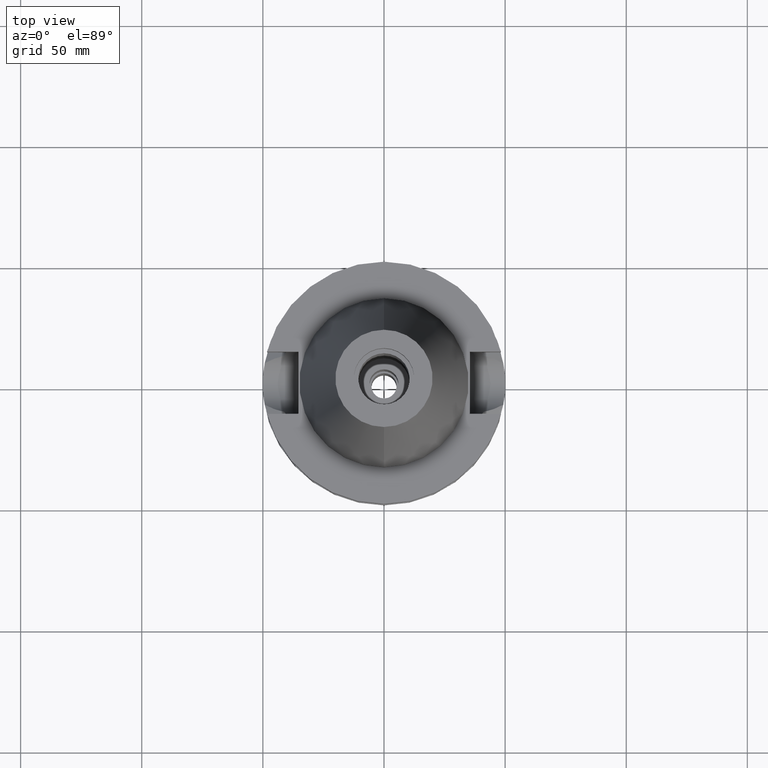
[diagram: clean part render]
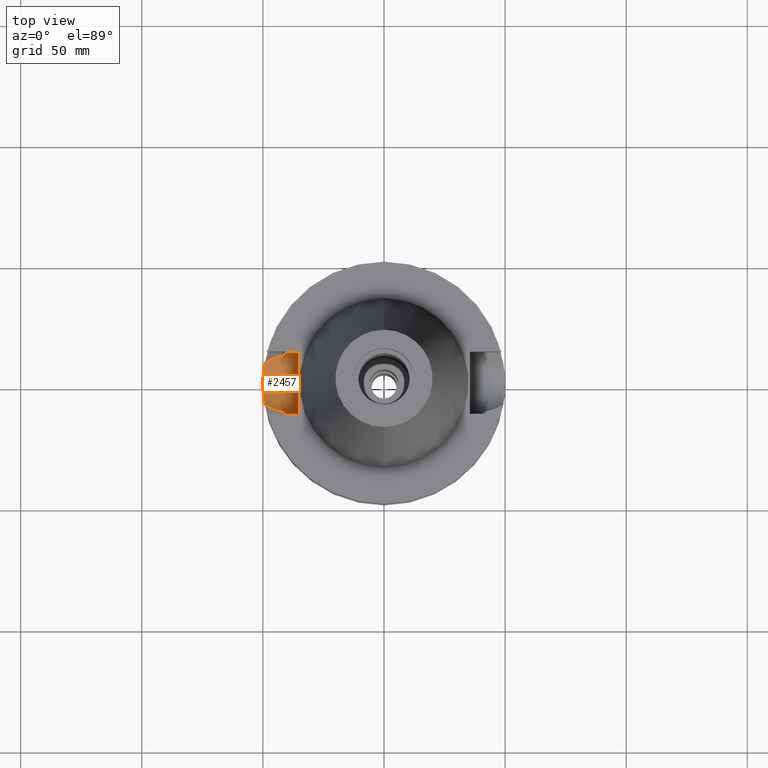
[diagram: same view with one face highlighted and labeled with its STEP entity id]
A machine part, top view. The second image highlights one B-rep face of the part: STEP entity #2457.
In plain terms, the highlighted cylindrical surface (edge-blend (fillet) strip) has radius 12.85 mm, axis along (-1, 0, 0).
Its self-contained STEP definition (entity closure, byte-faithful):
#51 = CARTESIAN_POINT ( 'NONE',  ( -46.93593280644003585, 9.770477689718383374, -29.54494220286485984 ) ) ;
#114 = LINE ( 'NONE', #962, #2189 ) ;
#144 = CARTESIAN_POINT ( 'NONE',  ( -49.99978277985250941, 0.1279040286458102138, -33.99951180098872072 ) ) ;
#159 = CARTESIAN_POINT ( 'NONE',  ( -40.59544973979548388, 12.58031391754228423, -23.76897202841965395 ) ) ;
#174 = CARTESIAN_POINT ( 'NONE',  ( -41.73355036729758893, 11.52031717551258438, -26.86454506609836912 ) ) ;
#206 = CARTESIAN_POINT ( 'NONE',  ( -49.96639091837806035, 1.855009115109566897, -33.87135769970631571 ) ) ;
#207 = CARTESIAN_POINT ( 'NONE',  ( -44.92494464716973823, 10.53396995766594912, -28.51065719593379200 ) ) ;
#243 = CARTESIAN_POINT ( 'NONE',  ( -49.61096464788543869, -6.225456152136553456, -32.39171795657699704 ) ) ;
#244 = CARTESIAN_POINT ( 'NONE',  ( -40.51083188481999997, -12.84999999999999964, -21.14999999999999858 ) ) ;
#255 = CARTESIAN_POINT ( 'NONE',  ( -40.85052569294000335, -11.72538061688000077, -26.40718074535000426 ) ) ;
#272 = CARTESIAN_POINT ( 'NONE',  ( -46.22834938327105903, -10.03203148302842962, -29.18084133726518559 ) ) ;
#275 = CARTESIAN_POINT ( 'NONE',  ( -49.72318384377803824, -5.264673823289333754, -32.87839317441247289 ) ) ;
#340 = VECTOR ( 'NONE', #1019, 1000.000000000000000 ) ;
#350 = FACE_OUTER_BOUND ( 'NONE', #3354, .T. ) ;
#365 = VERTEX_POINT ( 'NONE', #244 ) ;
#398 = CARTESIAN_POINT ( 'NONE',  ( -40.60613923872061548, -12.54577469982790916, -23.92970515985308566 ) ) ;
#424 = B_SPLINE_CURVE_WITH_KNOTS ( 'NONE', 3,
 ( #1858, #174, #1877, #1300, #3624, #3027, #207, #2064, #3214, #1059, #775, #51, #3184, #1445 ),
 .UNSPECIFIED., .F., .F.,
 ( 4, 2, 2, 1, 1, 2, 2, 4 ),
 ( 0.0000000000000000000, 0.2499999999999955591, 0.3749999999999924505, 0.4374999999999901745, 0.4687499999999889533, 0.4843749999999892308, 0.4999999999999895084, 1.000000000000000000 ),
 .UNSPECIFIED. ) ;
#430 = CARTESIAN_POINT ( 'NONE',  ( -40.60257358959960783, -12.55730255709285004, -23.87715530987610535 ) ) ;
#435 = CARTESIAN_POINT ( 'NONE',  ( -49.92883535248261495, -2.681505938424705970, -33.72308165346936448 ) ) ;
#457 = CARTESIAN_POINT ( 'NONE',  ( -49.26250064874000145, 8.556052234130000045, -30.73730776426999967 ) ) ;
#472 = CARTESIAN_POINT ( 'NONE',  ( -49.91487582320792882, 3.004850456986318363, -33.66796213028364804 ) ) ;
#483 = CARTESIAN_POINT ( 'NONE',  ( -40.59737185188235031, 12.57410792978981462, -23.79858982319187177 ) ) ;
#489 = CARTESIAN_POINT ( 'NONE',  ( -49.99656935713929329, 0.6200430177696067968, -33.98744614799130659 ) ) ;
#496 = ORIENTED_EDGE ( 'NONE', *, *, #524, .T. ) ;
#504 = CARTESIAN_POINT ( 'NONE',  ( -49.56384662196055757, -6.589859603476257099, -32.18165515072183069 ) ) ;
#512 = ORIENTED_EDGE ( 'NONE', *, *, #2803, .T. ) ;
#524 = EDGE_CURVE ( 'NONE', #2146, #3490, #1056, .T. ) ;
#601 = CARTESIAN_POINT ( 'NONE',  ( -35.39999999999999858, -12.84999999999999964, -21.14999999999999858 ) ) ;
#699 = CARTESIAN_POINT ( 'NONE',  ( -49.32369756976139996, 8.203703594942890476, -31.05175614077341706 ) ) ;
#710 = CARTESIAN_POINT ( 'NONE',  ( -40.74530552706649189, -12.08734373582207944, -25.53456320665380730 ) ) ;
#716 = CARTESIAN_POINT ( 'NONE',  ( -49.70802902552194524, 5.397483288257922673, -32.81309430130456661 ) ) ;
#725 = CARTESIAN_POINT ( 'NONE',  ( -40.51818746066845733, 12.82722055570913255, -22.03689885935567716 ) ) ;
#727 = CARTESIAN_POINT ( 'NONE',  ( -40.62483164125755053, -12.48524007482440368, -24.19334343400565146 ) ) ;
#733 = B_SPLINE_CURVE_WITH_KNOTS ( 'NONE', 3,
 ( #2103, #2953, #710, #1014, #2141, #1850, #727, #2991, #398, #430, #1866, #3593, #3316, #3014 ),
 .UNSPECIFIED., .F., .F.,
 ( 4, 2, 2, 1, 1, 2, 2, 4 ),
 ( 0.0000000000000000000, 0.2500000000000067724, 0.3750000000000099920, 0.4375000000000106026, 0.4687500000000101585, 0.4843750000000098810, 0.5000000000000096589, 1.000000000000000000 ),
 .UNSPECIFIED. ) ;
#755 = CARTESIAN_POINT ( 'NONE',  ( -49.52345606516562526, 6.887109229851665404, -31.99909553166774856 ) ) ;
#774 = CARTESIAN_POINT ( 'NONE',  ( -49.60515397030381735, 6.281699427295099447, -32.36773838364770484 ) ) ;
#775 = CARTESIAN_POINT ( 'NONE',  ( -45.48382576156851798, 10.32615369473967704, -28.79812693179675875 ) ) ;
#802 = CARTESIAN_POINT ( 'NONE',  ( -44.01763703460596133, -10.87573759331048961, -28.04374002392476228 ) ) ;
#809 = CARTESIAN_POINT ( 'NONE',  ( -49.64357081501744773, -5.961532523797457017, -32.53519818173173661 ) ) ;
#820 = ORIENTED_EDGE ( 'NONE', *, *, #1305, .T. ) ;
#832 = CARTESIAN_POINT ( 'NONE',  ( -49.48018584321660285, -7.212056195499805256, -31.80433119696820299 ) ) ;
#847 = EDGE_CURVE ( 'NONE', #3125, #3490, #114, .T. ) ;
#869 = CARTESIAN_POINT ( 'NONE',  ( -49.59426852412700981, -6.357723773993702920, -32.31781328747140947 ) ) ;
#957 = CARTESIAN_POINT ( 'NONE',  ( -49.26250064874000145, 8.556052234130000045, -30.73730776426999967 ) ) ;
#962 = CARTESIAN_POINT ( 'NONE',  ( -40.51083188481999997, 12.84999999999999964, -21.14999999999999858 ) ) ;
#978 = CARTESIAN_POINT ( 'NONE',  ( -49.55642839048222470, 6.645350892796836995, -32.14826596388366653 ) ) ;
#1003 = CARTESIAN_POINT ( 'NONE',  ( -49.99991625534445916, -0.01371456481389683214, -34.00001357600844187 ) ) ;
#1014 = CARTESIAN_POINT ( 'NONE',  ( -40.68244699597367031, -12.29665972421070386, -24.88712495138160463 ) ) ;
#1019 = DIRECTION ( 'NONE',  ( -1.000000000000000000, 3.440913946376999995E-14, 0.0000000000000000000 ) ) ;
#1055 = CARTESIAN_POINT ( 'NONE',  ( -49.78995452582805825, 4.578044775508808506, -33.15683700966879854 ) ) ;
#1056 = CIRCLE ( 'NONE', #2061, 12.84999999999999964 ) ;
#1059 = CARTESIAN_POINT ( 'NONE',  ( -45.44311735373492667, 10.34162502750873536, -28.77719035429739236 ) ) ;
#1070 = CARTESIAN_POINT ( 'NONE',  ( -45.96064671245673594, -10.14119174061491080, -29.04322560201031678 ) ) ;
#1072 = CARTESIAN_POINT ( 'NONE',  ( -49.80418093013224023, -4.420986045297412126, -33.21572998609586591 ) ) ;
#1084 = CARTESIAN_POINT ( 'NONE',  ( -45.39795700643784926, -10.35879859513059031, -28.75382649839412252 ) ) ;
#1087 = CARTESIAN_POINT ( 'NONE',  ( -49.79134522950766240, -4.562917809011215020, -33.16259509176391163 ) ) ;
#1119 = B_SPLINE_CURVE_WITH_KNOTS ( 'NONE', 3,
 ( #2843, #3074, #2808, #1421, #2251, #272, #1070, #3683, #2550, #1084, #2200, #2569, #3367, #802, #1943, #255 ),
 .UNSPECIFIED., .F., .F.,
 ( 4, 2, 2, 1, 1, 1, 1, 2, 2, 4 ),
 ( 0.0000000000000000000, 0.2500000000000010547, 0.3750000000000003331, 0.4375000000000007216, 0.4687500000000001665, 0.4843750000000007216, 0.4921875000000007216, 0.4960937500000007772, 0.5000000000000007772, 1.000000000000000000 ),
 .UNSPECIFIED. ) ;
#1125 = CARTESIAN_POINT ( 'NONE',  ( -49.55496529461196076, -6.656265981407194943, -32.14166343317493357 ) ) ;
#1142 = CARTESIAN_POINT ( 'NONE',  ( -49.55645080413793835, -6.645196272242118951, -32.14835934795791417 ) ) ;
#1145 = EDGE_CURVE ( 'NONE', #1755, #1254, #424, .T. ) ;
#1254 = VERTEX_POINT ( 'NONE', #957 ) ;
#1296 = CARTESIAN_POINT ( 'NONE',  ( -49.37885247744267048, 7.862144685744802963, -31.32188303451457401 ) ) ;
#1300 = CARTESIAN_POINT ( 'NONE',  ( -43.73416380861385022, 10.93837383931961327, -27.89752348326785736 ) ) ;
#1305 = EDGE_CURVE ( 'NONE', #2159, #365, #733, .T. ) ;
#1312 = CARTESIAN_POINT ( 'NONE',  ( -49.55601938757184399, 6.648398653580162687, -32.14642309865460135 ) ) ;
#1320 = ORIENTED_EDGE ( 'NONE', *, *, #2286, .F. ) ;
#1330 = CARTESIAN_POINT ( 'NONE',  ( -49.50787092354087804, 6.997722632491274020, -31.92787014574887650 ) ) ;
#1378 = ORIENTED_EDGE ( 'NONE', *, *, #847, .F. ) ;
#1406 = CARTESIAN_POINT ( 'NONE',  ( -49.84637315205687713, -3.922661578602941734, -33.38950660940504633 ) ) ;
#1421 = CARTESIAN_POINT ( 'NONE',  ( -47.09541017771560689, -9.660579311969426541, -29.62630441705865536 ) ) ;
#1445 = CARTESIAN_POINT ( 'NONE',  ( -49.26250064874000145, 8.556052234130000045, -30.73730776426999967 ) ) ;
#1451 = CARTESIAN_POINT ( 'NONE',  ( -35.39999999999999858, 1.497743035356999952E-14, -21.14999999999999858 ) ) ;
#1515 = CARTESIAN_POINT ( 'NONE',  ( -35.39999999999999858, 1.497743035356999952E-14, -21.14999999999999858 ) ) ;
#1525 = AXIS2_PLACEMENT_3D ( 'NONE', #1515, #2018, #3221 ) ;
#1554 = CARTESIAN_POINT ( 'NONE',  ( -35.39999999999999858, -12.84999999999999964, -21.14999999999999858 ) ) ;
#1572 = CARTESIAN_POINT ( 'NONE',  ( -49.90695299034040033, -3.064054277227648448, -33.63563523793886390 ) ) ;
#1595 = CARTESIAN_POINT ( 'NONE',  ( -49.55310733097395115, 6.670070395915868922, -32.13329829207893340 ) ) ;
#1604 = CARTESIAN_POINT ( 'NONE',  ( -40.85052569294000335, 11.72538061688000077, -26.40718074535000426 ) ) ;
#1610 = CARTESIAN_POINT ( 'NONE',  ( -49.97920013489467550, 1.472795263108784392, -33.92099889258540912 ) ) ;
#1618 = CARTESIAN_POINT ( 'NONE',  ( -40.73816994079598430, 12.11682134614811446, -25.53412886413605776 ) ) ;
#1755 = VERTEX_POINT ( 'NONE', #3547 ) ;
#1759 = ORIENTED_EDGE ( 'NONE', *, *, #1145, .T. ) ;
#1837 = CARTESIAN_POINT ( 'NONE',  ( -49.78701911217367382, 4.609908264059964900, -33.14467182168068859 ) ) ;
#1848 = CARTESIAN_POINT ( 'NONE',  ( -40.57496331174877469, 12.64632619882844189, -23.43376116601609382 ) ) ;
#1850 = CARTESIAN_POINT ( 'NONE',  ( -40.63720115042401915, -12.44498656809117598, -24.35265160719256627 ) ) ;
#1854 = CARTESIAN_POINT ( 'NONE',  ( -49.98151726923665450, -1.537017214629903261, -33.93129506475736434 ) ) ;
#1858 = CARTESIAN_POINT ( 'NONE',  ( -40.85052569294000335, 11.72538061688000077, -26.40718074535000426 ) ) ;
#1866 = CARTESIAN_POINT ( 'NONE',  ( -40.60093031198017854, -12.56261288210636451, -23.85260464680346360 ) ) ;
#1877 = CARTESIAN_POINT ( 'NONE',  ( -42.56483798051073819, 11.29548452375017398, -27.29433975277819968 ) ) ;
#1897 = CARTESIAN_POINT ( 'NONE',  ( -49.79275732135775456, 4.547483021868311326, -33.16844661963975938 ) ) ;
#1910 = CARTESIAN_POINT ( 'NONE',  ( -49.64886371742711191, 5.925076878028344041, -32.55913415216248552 ) ) ;
#1927 = CARTESIAN_POINT ( 'NONE',  ( -49.75827387584953954, -4.921781670042143730, -33.02549376367868206 ) ) ;
#1943 = CARTESIAN_POINT ( 'NONE',  ( -42.52903099766796657, -11.33558395078968495, -27.27656578164542012 ) ) ;
#1978 = CARTESIAN_POINT ( 'NONE',  ( -49.79350631851472997, -4.539276377465708556, -33.17154855829495830 ) ) ;
#2018 = DIRECTION ( 'NONE',  ( -1.000000000000000000, 0.0000000000000000000, 0.0000000000000000000 ) ) ;
#2061 = AXIS2_PLACEMENT_3D ( 'NONE', #1451, #3514, #2306 ) ;
#2064 = CARTESIAN_POINT ( 'NONE',  ( -45.22921619679243577, 10.42208307057615357, -28.66717461634074837 ) ) ;
#2103 = CARTESIAN_POINT ( 'NONE',  ( -40.85052569294000335, -11.72538061688000077, -26.40718074535000426 ) ) ;
#2109 = CARTESIAN_POINT ( 'NONE',  ( -49.76585878238029181, 4.834011011676347280, -33.05670933719578386 ) ) ;
#2125 = CARTESIAN_POINT ( 'NONE',  ( -40.51083188481999997, 12.84999999999999964, -21.14999999999999858 ) ) ;
#2131 = CARTESIAN_POINT ( 'NONE',  ( -49.99935165417582539, -0.7784239460342415873, -33.99781837041128796 ) ) ;
#2140 = VERTEX_POINT ( 'NONE', #2915 ) ;
#2141 = CARTESIAN_POINT ( 'NONE',  ( -40.66327821819965749, -12.35976375020078244, -24.67241565226416000 ) ) ;
#2146 = VERTEX_POINT ( 'NONE', #601 ) ;
#2159 = VERTEX_POINT ( 'NONE', #2890 ) ;
#2181 = B_SPLINE_CURVE_WITH_KNOTS ( 'NONE', 3,
 ( #2125, #3314, #725, #3280, #2709, #3037, #1848, #3072, #3348, #159, #483, #2990, #1618, #1604 ),
 .UNSPECIFIED., .F., .F.,
 ( 4, 2, 2, 1, 1, 2, 2, 4 ),
 ( 0.0000000000000000000, 0.2500000000000048850, 0.3750000000000073830, 0.4375000000000096034, 0.4687500000000108247, 0.4843750000000114353, 0.5000000000000119904, 1.000000000000000000 ),
 .UNSPECIFIED. ) ;
#2189 = VECTOR ( 'NONE', #2631, 1000.000000000000000 ) ;
#2190 = CARTESIAN_POINT ( 'NONE',  ( -49.99187023685944808, 0.9036077944471718748, -33.96960422962339265 ) ) ;
#2200 = CARTESIAN_POINT ( 'NONE',  ( -45.36301283811712892, -10.37195382577309388, -28.73585057880294968 ) ) ;
#2218 = CARTESIAN_POINT ( 'NONE',  ( -49.57410189273880263, -6.512428102593755597, -32.22769848486099420 ) ) ;
#2226 = ORIENTED_EDGE ( 'NONE', *, *, #2304, .T. ) ;
#2238 = CARTESIAN_POINT ( 'NONE',  ( -49.79673529072686478, -4.503806050136036632, -33.18492202724791440 ) ) ;
#2251 = CARTESIAN_POINT ( 'NONE',  ( -46.75532757769864389, -9.811182325531150994, -29.45165492045948241 ) ) ;
#2286 = EDGE_CURVE ( 'NONE', #2146, #365, #3583, .T. ) ;
#2304 = EDGE_CURVE ( 'NONE', #1254, #2140, #2786, .T. ) ;
#2306 = DIRECTION ( 'NONE',  ( 0.0000000000000000000, -1.000000000000000000, 0.0000000000000000000 ) ) ;
#2337 = CARTESIAN_POINT ( 'NONE',  ( -49.54064746258092811, 6.762057735398300906, -32.07703431524269888 ) ) ;
#2370 = CYLINDRICAL_SURFACE ( 'NONE', #1525, 12.85000000000000320 ) ;
#2409 = CARTESIAN_POINT ( 'NONE',  ( -49.54899534433516806, 6.700559329976294443, -32.11474970760249192 ) ) ;
#2455 = CARTESIAN_POINT ( 'NONE',  ( -49.72668424278856492, 5.222831055603546879, -32.89222978348012560 ) ) ;
#2457 = ADVANCED_FACE ( 'NONE', ( #350 ), #2370, .F. ) ;
#2476 = CARTESIAN_POINT ( 'NONE',  ( -49.75306724054095753, 4.963223254327805201, -33.00317556853671874 ) ) ;
#2494 = ORIENTED_EDGE ( 'NONE', *, *, #3468, .T. ) ;
#2550 = CARTESIAN_POINT ( 'NONE',  ( -45.47926296937998103, -10.32802363742042040, -28.79565020721191004 ) ) ;
#2555 = CARTESIAN_POINT ( 'NONE',  ( -49.55404929939109593, -6.663081176455081689, -32.13753266288392751 ) ) ;
#2569 = CARTESIAN_POINT ( 'NONE',  ( -45.33969478020746635, -10.38071638264628227, -28.72385519738484660 ) ) ;
#2631 = DIRECTION ( 'NONE',  ( 1.000000000000000000, 3.301887120261000215E-14, -2.502482870091999982E-14 ) ) ;
#2697 = CARTESIAN_POINT ( 'NONE',  ( -49.79190313582603267, 4.556817176955488158, -33.16490932796079250 ) ) ;
#2709 = CARTESIAN_POINT ( 'NONE',  ( -40.54944865802443843, 12.72805685033412182, -22.93054388460652504 ) ) ;
#2786 = B_SPLINE_CURVE_WITH_KNOTS ( 'NONE', 3,
 ( #457, #699, #1296, #3321, #3616, #1330, #755, #2337, #2409, #1595, #3341, #1312, #978, #774, #1910, #716, #2455, #2476, #2109, #3263, #1837, #1055, #2697, #1897, #3044, #472, #206, #1610, #2190, #489, #3286, #144, #2980, #3561, #1003, #2131, #1854, #435, #1572, #3687, #1406, #3431, #1072, #2238, #1978, #1087, #3372, #1927, #275, #3126, #809, #243, #869, #2218, #504, #2849, #1142, #1125, #2555, #832, #3409, #3096 ),
 .UNSPECIFIED., .F., .F.,
 ( 4, 2, 2, 1, 1, 1, 1, 2, 2, 2, 2, 1, 1, 1, 2, 2, 2, 2, 1, 1, 1, 2, 2, 2, 2, 1, 1, 1, 1, 2, 2, 2, 2, 1, 1, 1, 1, 2, 2, 4 ),
 ( 0.0000000000000000000, 0.06250000000004522771, 0.09375000000006791789, 0.1093750000000793254, 0.1171875000000851125, 0.1210937500000876521, 0.1230468750000888595, 0.1240234375000891232, 0.1250000000000893730, 0.1875000000000827116, 0.2187500000000793809, 0.2343750000000778544, 0.2421875000000768552, 0.2460937500000763556, 0.2480468750000761058, 0.2500000000000758282, 0.3750000000000441869, 0.4375000000000283107, 0.4687500000000203726, 0.4843750000000163203, 0.4921875000000143219, 0.4960937500000133227, 0.5000000000000123235, 0.6249999999999802380, 0.6874999999999639178, 0.7187499999999557021, 0.7343749999999517053, 0.7421874999999497069, 0.7460937499999483746, 0.7480468749999477085, 0.7499999999999469313, 0.8124999999999349409, 0.8437499999999286127, 0.8593749999999250599, 0.8671874999999232836, 0.8710937499999225064, 0.8730468749999217293, 0.8740234374999216183, 0.8749999999999215072, 1.000000000000000000 ),
 .UNSPECIFIED. ) ;
#2790 = CARTESIAN_POINT ( 'NONE',  ( -35.39999999999999858, 12.84999999999999964, -21.14999999999999858 ) ) ;
#2803 = EDGE_CURVE ( 'NONE', #2140, #2159, #1119, .T. ) ;
#2808 = CARTESIAN_POINT ( 'NONE',  ( -48.08194938896208015, -9.200206156442238381, -30.13258445732421364 ) ) ;
#2843 = CARTESIAN_POINT ( 'NONE',  ( -49.26250064874000145, -8.556052234130000045, -30.73730776426999967 ) ) ;
#2849 = CARTESIAN_POINT ( 'NONE',  ( -49.55867599780037835, -6.628592828943155268, -32.15838541685177887 ) ) ;
#2890 = CARTESIAN_POINT ( 'NONE',  ( -40.85052569294000335, -11.72538061688000077, -26.40718074535000426 ) ) ;
#2915 = CARTESIAN_POINT ( 'NONE',  ( -49.26250064874000145, -8.556052234130000045, -30.73730776426999967 ) ) ;
#2953 = CARTESIAN_POINT ( 'NONE',  ( -40.79434747815605533, -11.92110216156726743, -25.97065217280587035 ) ) ;
#2980 = CARTESIAN_POINT ( 'NONE',  ( -49.99988398039893411, 0.05792329656368432056, -33.99989059424402882 ) ) ;
#2990 = CARTESIAN_POINT ( 'NONE',  ( -40.65436097481651245, 12.39000951530815087, -24.66364262345140546 ) ) ;
#2991 = CARTESIAN_POINT ( 'NONE',  ( -40.61157134049236106, -12.52820429568858884, -24.00861743071703458 ) ) ;
#3014 = CARTESIAN_POINT ( 'NONE',  ( -40.51083188481999997, -12.84999999999999964, -21.14999999999999858 ) ) ;
#3027 = CARTESIAN_POINT ( 'NONE',  ( -44.65686493755536901, 10.62862835434165021, -28.37270278183864036 ) ) ;
#3037 = CARTESIAN_POINT ( 'NONE',  ( -40.56599870368348348, 12.67508435575842363, -23.26602303909836778 ) ) ;
#3044 = CARTESIAN_POINT ( 'NONE',  ( -49.86308249893413347, 3.775850017209180010, -33.45954281395825802 ) ) ;
#3072 = CARTESIAN_POINT ( 'NONE',  ( -40.58662879532096923, 12.60876850764078938, -23.62934185159354783 ) ) ;
#3074 = CARTESIAN_POINT ( 'NONE',  ( -48.69469741138728125, -8.881895177831385269, -30.44651400704669797 ) ) ;
#3096 = CARTESIAN_POINT ( 'NONE',  ( -49.26250064874000145, -8.556052234130000045, -30.73730776426999967 ) ) ;
#3125 = VERTEX_POINT ( 'NONE', #3276 ) ;
#3126 = CARTESIAN_POINT ( 'NONE',  ( -49.66426015259241211, -5.786401571600833016, -32.62507869611288669 ) ) ;
#3184 = CARTESIAN_POINT ( 'NONE',  ( -48.18082335423584084, 9.176790001358369864, -30.18333944587587325 ) ) ;
#3214 = CARTESIAN_POINT ( 'NONE',  ( -45.35779940843204372, 10.37384485205312856, -28.73330956085881738 ) ) ;
#3221 = DIRECTION ( 'NONE',  ( 0.0000000000000000000, 0.0000000000000000000, -1.000000000000000000 ) ) ;
#3263 = CARTESIAN_POINT ( 'NONE',  ( -49.78008232304495095, 4.684409442191281414, -33.11588758438126234 ) ) ;
#3276 = CARTESIAN_POINT ( 'NONE',  ( -40.51083188481999997, 12.84999999999999964, -21.14999999999999858 ) ) ;
#3280 = CARTESIAN_POINT ( 'NONE',  ( -40.54025418821384363, 12.75731235969285571, -22.70688809813407261 ) ) ;
#3286 = CARTESIAN_POINT ( 'NONE',  ( -49.99918878540299971, 0.2915256918530189090, -33.99728939608844058 ) ) ;
#3314 = CARTESIAN_POINT ( 'NONE',  ( -40.51083188482000708, 12.85000000000001918, -21.59155814776823235 ) ) ;
#3316 = CARTESIAN_POINT ( 'NONE',  ( -40.51083188481999287, -12.84999999999998366, -22.03311098683157709 ) ) ;
#3321 = CARTESIAN_POINT ( 'NONE',  ( -49.45252181895447308, 7.379311466921044449, -31.67177590314608437 ) ) ;
#3341 = CARTESIAN_POINT ( 'NONE',  ( -49.55485633505378473, 6.657059842385580239, -32.14118191444617167 ) ) ;
#3348 = CARTESIAN_POINT ( 'NONE',  ( -40.59188688274389989, 12.59181081970429972, -23.71312563686031893 ) ) ;
#3354 = EDGE_LOOP ( 'NONE', ( #820, #1320, #496, #1378, #2494, #1759, #2226, #512 ) ) ;
#3367 = CARTESIAN_POINT ( 'NONE',  ( -45.32648995038802298, -10.38566854272943196, -28.71706221704090822 ) ) ;
#3372 = CARTESIAN_POINT ( 'NONE',  ( -49.79013702930683394, -4.576075037510685561, -33.15758772691527412 ) ) ;
#3409 = CARTESIAN_POINT ( 'NONE',  ( -49.38319382131010116, -7.861146764938927944, -31.35746596074964643 ) ) ;
#3431 = CARTESIAN_POINT ( 'NONE',  ( -49.81871769258475524, -4.255133180669341542, -33.27576126218765040 ) ) ;
#3468 = EDGE_CURVE ( 'NONE', #3125, #1755, #2181, .T. ) ;
#3490 = VERTEX_POINT ( 'NONE', #2790 ) ;
#3514 = DIRECTION ( 'NONE',  ( 1.000000000000000000, 0.0000000000000000000, 0.0000000000000000000 ) ) ;
#3547 = CARTESIAN_POINT ( 'NONE',  ( -40.85052569294000335, 11.72538061688000077, -26.40718074535000426 ) ) ;
#3561 = CARTESIAN_POINT ( 'NONE',  ( -49.99991736554026289, 0.01130191163153674259, -34.00001617349639815 ) ) ;
#3583 = LINE ( 'NONE', #1554, #340 ) ;
#3593 = CARTESIAN_POINT ( 'NONE',  ( -40.54025177940290092, -12.75862267496949620, -22.93154239035596476 ) ) ;
#3616 = CARTESIAN_POINT ( 'NONE',  ( -49.47556776279004254, 7.223238669574444160, -31.77919332790522944 ) ) ;
#3624 = CARTESIAN_POINT ( 'NONE',  ( -44.11100481936213669, 10.81601670756742983, -28.09168475657030939 ) ) ;
#3683 = CARTESIAN_POINT ( 'NONE',  ( -45.64095317603902657, -10.26615882160745130, -28.87881693539249639 ) ) ;
#3687 = CARTESIAN_POINT ( 'NONE',  ( -49.86764686229074783, -3.636664092596931130, -33.47624956159740606 ) ) ;